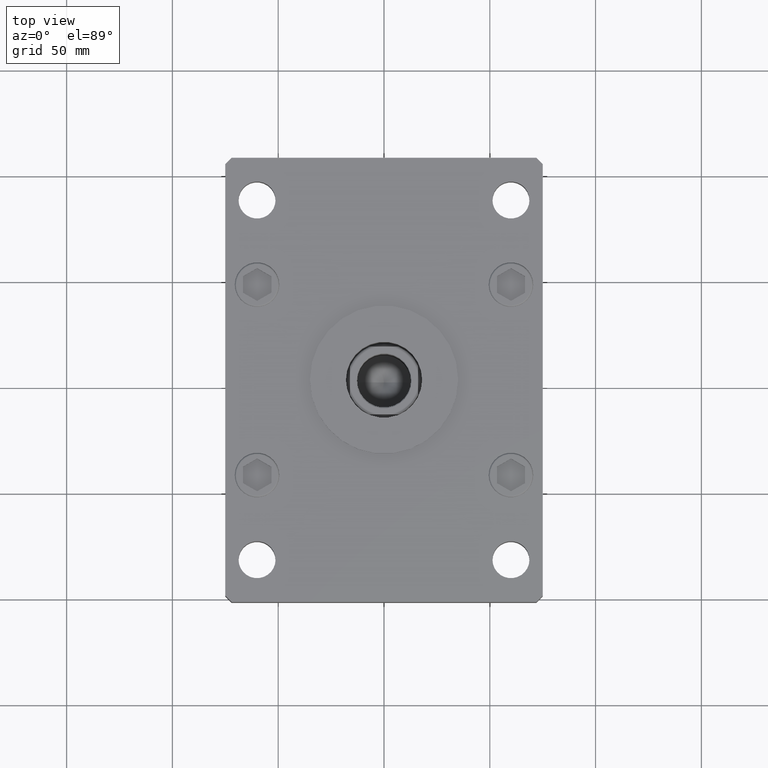
[diagram: clean part render]
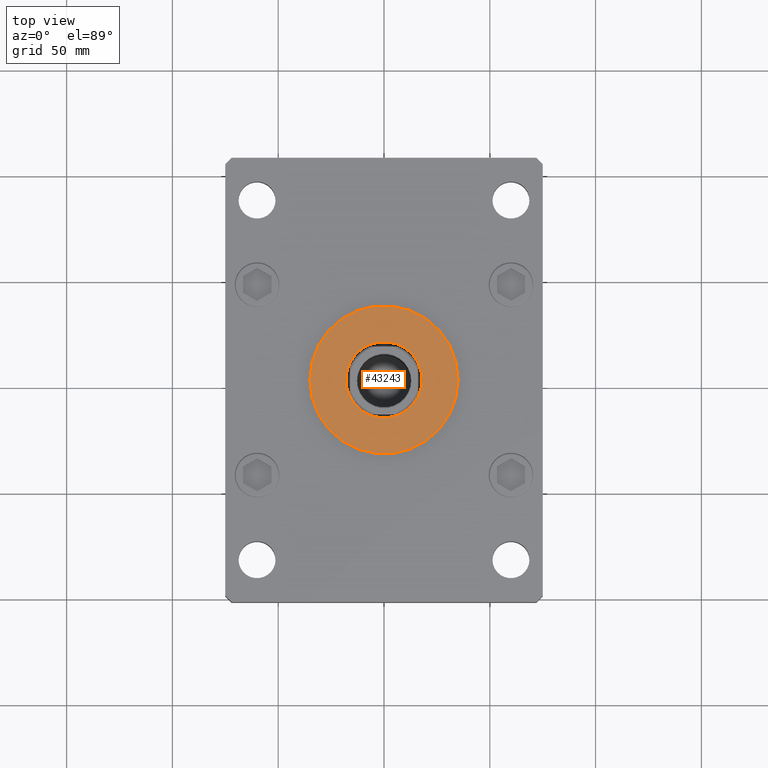
[diagram: same view with one face highlighted and labeled with its STEP entity id]
A machine part, top view. The second image highlights one B-rep face of the part: STEP entity #43243.
In plain terms, the highlighted planar face has unit normal (0, 0, 1).
Its self-contained STEP definition (entity closure, byte-faithful):
#2983 = AXIS2_PLACEMENT_3D ( 'NONE', #53072, #4604, #37175 ) ;
#3804 = FACE_OUTER_BOUND ( 'NONE', #44377, .T. ) ;
#4342 = FACE_BOUND ( 'NONE', #32793, .T. ) ;
#4604 = DIRECTION ( 'NONE',  ( 0.000000000000000000, 0.000000000000000000, 1.000000000000000000 ) ) ;
#6517 = CARTESIAN_POINT ( 'NONE',  ( -18.00000000000000000, 2.204364238465235428E-15, 28.99999999999999645 ) ) ;
#9724 = ORIENTED_EDGE ( 'NONE', *, *, #53272, .F. ) ;
#12611 = AXIS2_PLACEMENT_3D ( 'NONE', #26203, #38306, #17328 ) ;
#13318 = CARTESIAN_POINT ( 'NONE',  ( 35.00000000000000711, 4.286263797015737285E-15, 28.99999999999999645 ) ) ;
#14199 = EDGE_CURVE ( 'NONE', #48078, #44335, #44837, .T. ) ;
#14267 = DIRECTION ( 'NONE',  ( 0.000000000000000000, 0.000000000000000000, 1.000000000000000000 ) ) ;
#14345 = CIRCLE ( 'NONE', #26378, 35.00000000000000711 ) ;
#16454 = ORIENTED_EDGE ( 'NONE', *, *, #48153, .T. ) ;
#17328 = DIRECTION ( 'NONE',  ( 1.000000000000000000, 0.000000000000000000, 0.000000000000000000 ) ) ;
#17767 = CIRCLE ( 'NONE', #12611, 18.00000000000000000 ) ;
#20229 = PLANE ( 'NONE',  #2983 ) ;
#24322 = DIRECTION ( 'NONE',  ( 1.000000000000000000, 0.000000000000000000, 0.000000000000000000 ) ) ;
#25647 = ORIENTED_EDGE ( 'NONE', *, *, #39679, .F. ) ;
#26203 = CARTESIAN_POINT ( 'NONE',  ( 0.000000000000000000, 0.000000000000000000, 28.99999999999999645 ) ) ;
#26378 = AXIS2_PLACEMENT_3D ( 'NONE', #39908, #35610, #31312 ) ;
#31312 = DIRECTION ( 'NONE',  ( 1.000000000000000000, 0.000000000000000000, 0.000000000000000000 ) ) ;
#32667 = CARTESIAN_POINT ( 'NONE',  ( 0.000000000000000000, 0.000000000000000000, 28.99999999999999645 ) ) ;
#32793 = EDGE_LOOP ( 'NONE', ( #25647, #9724 ) ) ;
#33815 = VERTEX_POINT ( 'NONE', #6517 ) ;
#34716 = CARTESIAN_POINT ( 'NONE',  ( 0.000000000000000000, 0.000000000000000000, 28.99999999999999645 ) ) ;
#35610 = DIRECTION ( 'NONE',  ( 0.000000000000000000, 0.000000000000000000, 1.000000000000000000 ) ) ;
#35721 = CARTESIAN_POINT ( 'NONE',  ( 18.00000000000000000, 0.000000000000000000, 28.99999999999999645 ) ) ;
#36700 = ORIENTED_EDGE ( 'NONE', *, *, #14199, .T. ) ;
#37175 = DIRECTION ( 'NONE',  ( 1.000000000000000000, 0.000000000000000000, -0.000000000000000000 ) ) ;
#38306 = DIRECTION ( 'NONE',  ( 0.000000000000000000, 0.000000000000000000, 1.000000000000000000 ) ) ;
#38780 = CARTESIAN_POINT ( 'NONE',  ( -35.00000000000000711, 0.000000000000000000, 28.99999999999999645 ) ) ;
#39679 = EDGE_CURVE ( 'NONE', #52225, #33815, #42434, .T. ) ;
#39908 = CARTESIAN_POINT ( 'NONE',  ( 0.000000000000000000, 0.000000000000000000, 28.99999999999999645 ) ) ;
#42434 = CIRCLE ( 'NONE', #49320, 18.00000000000000000 ) ;
#43243 = ADVANCED_FACE ( 'NONE', ( #4342, #3804 ), #20229, .T. ) ;
#44335 = VERTEX_POINT ( 'NONE', #38780 ) ;
#44377 = EDGE_LOOP ( 'NONE', ( #16454, #36700 ) ) ;
#44837 = CIRCLE ( 'NONE', #46570, 35.00000000000000711 ) ;
#46570 = AXIS2_PLACEMENT_3D ( 'NONE', #32667, #49090, #24322 ) ;
#47092 = DIRECTION ( 'NONE',  ( 1.000000000000000000, 0.000000000000000000, 0.000000000000000000 ) ) ;
#48078 = VERTEX_POINT ( 'NONE', #13318 ) ;
#48153 = EDGE_CURVE ( 'NONE', #44335, #48078, #14345, .T. ) ;
#49090 = DIRECTION ( 'NONE',  ( 0.000000000000000000, 0.000000000000000000, 1.000000000000000000 ) ) ;
#49320 = AXIS2_PLACEMENT_3D ( 'NONE', #34716, #14267, #47092 ) ;
#52225 = VERTEX_POINT ( 'NONE', #35721 ) ;
#53072 = CARTESIAN_POINT ( 'NONE',  ( 0.000000000000000000, 0.000000000000000000, 28.99999999999999645 ) ) ;
#53272 = EDGE_CURVE ( 'NONE', #33815, #52225, #17767, .T. ) ;